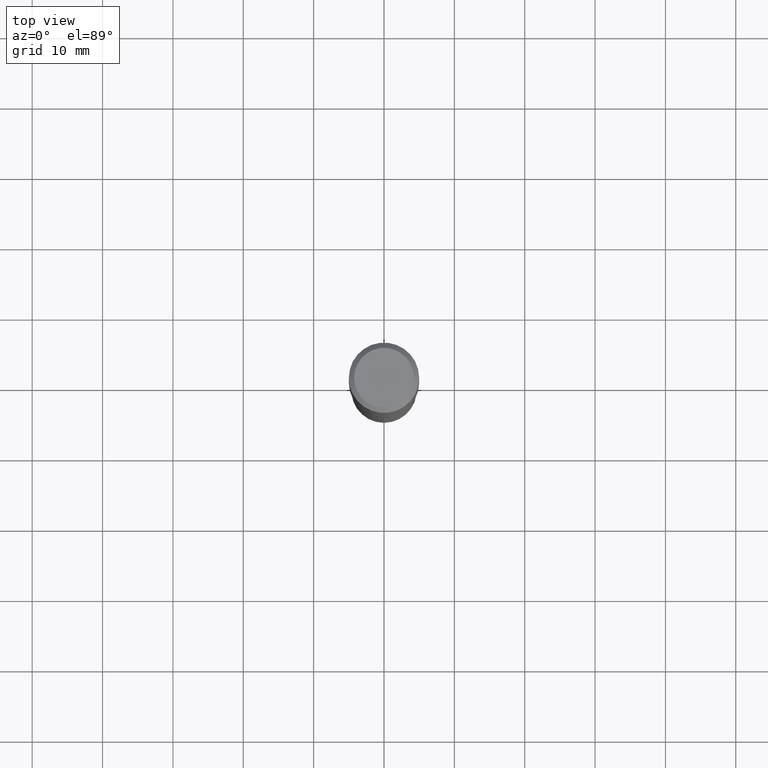
[diagram: clean part render]
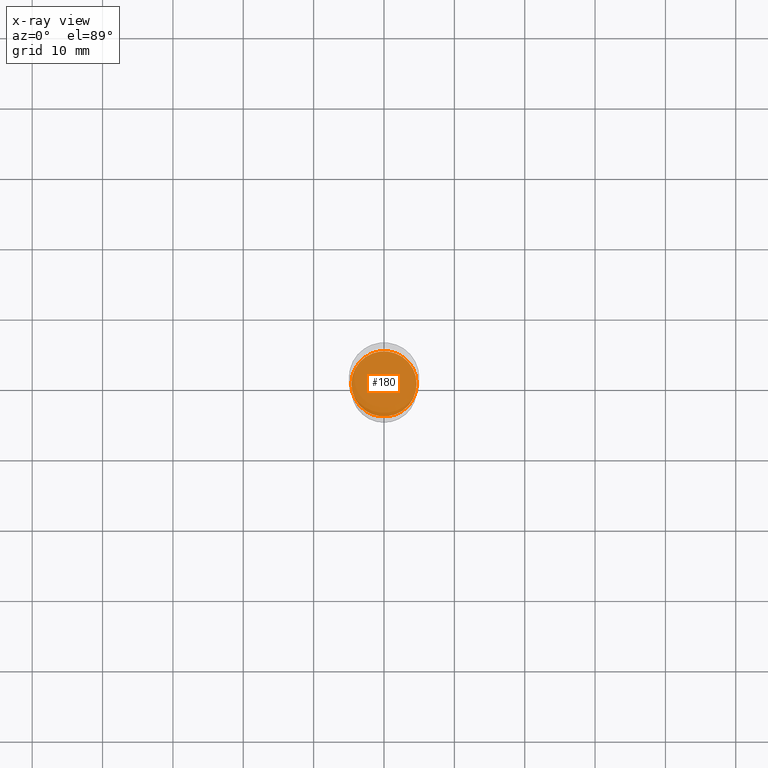
[diagram: x-ray — body ghosted, one internal face saturated and labeled with its STEP entity id]
A machine part, top view, then the same camera in x-ray: the body is ghosted and one INTERNAL B-rep face — a face not visible from any outside direction — is saturated and labeled: STEP entity #180.
In plain terms, the highlighted planar face has unit normal (-0, 0, 1).
Its self-contained STEP definition (entity closure, byte-faithful):
#5 = CIRCLE ( 'NONE', #332, 0.1825499999999999623 ) ;
#7 = FACE_OUTER_BOUND ( 'NONE', #96, .T. ) ;
#49 = ORIENTED_EDGE ( 'NONE', *, *, #347, .F. ) ;
#96 = EDGE_LOOP ( 'NONE', ( #364, #49 ) ) ;
#98 = DIRECTION ( 'NONE',  ( -2.445468806185136597E-29, 3.491481338843145583E-15, 1.000000000000000000 ) ) ;
#136 = AXIS2_PLACEMENT_3D ( 'NONE', #345, #98, #396 ) ;
#180 = ADVANCED_FACE ( 'NONE', ( #7 ), #302, .F. ) ;
#190 = DIRECTION ( 'NONE',  ( 1.000000000000000000, -6.982962677686264344E-15, 0.000000000000000000 ) ) ;
#192 = DIRECTION ( 'NONE',  ( -2.438088387897960049E-29, 3.491481338843145188E-15, 1.000000000000000000 ) ) ;
#195 = CARTESIAN_POINT ( 'NONE',  ( 4.938868800971501707E-29, -7.051395711927616472E-15, -2.019600000000000062 ) ) ;
#230 = EDGE_CURVE ( 'NONE', #314, #437, #5, .T. ) ;
#268 = CARTESIAN_POINT ( 'NONE',  ( -0.1825499999999999623, -5.751650720623443241E-15, -2.019600000000000062 ) ) ;
#302 = PLANE ( 'NONE',  #374 ) ;
#314 = VERTEX_POINT ( 'NONE', #471 ) ;
#326 = CIRCLE ( 'NONE', #136, 0.1825499999999999623 ) ;
#332 = AXIS2_PLACEMENT_3D ( 'NONE', #195, #455, #190 ) ;
#345 = CARTESIAN_POINT ( 'NONE',  ( 4.938868800971501707E-29, -7.051395711927616472E-15, -2.019600000000000062 ) ) ;
#347 = EDGE_CURVE ( 'NONE', #437, #314, #326, .T. ) ;
#364 = ORIENTED_EDGE ( 'NONE', *, *, #230, .F. ) ;
#374 = AXIS2_PLACEMENT_3D ( 'NONE', #450, #192, #420 ) ;
#396 = DIRECTION ( 'NONE',  ( 1.000000000000000000, -6.982962677686264344E-15, 0.000000000000000000 ) ) ;
#420 = DIRECTION ( 'NONE',  ( 1.000000000000000000, -6.982962677686265922E-15, 4.876176775795935793E-29 ) ) ;
#437 = VERTEX_POINT ( 'NONE', #268 ) ;
#450 = CARTESIAN_POINT ( 'NONE',  ( 4.938868800971501707E-29, -7.051395711927616472E-15, -2.019600000000000062 ) ) ;
#455 = DIRECTION ( 'NONE',  ( -2.445468806185136597E-29, 3.491481338843145583E-15, 1.000000000000000000 ) ) ;
#471 = CARTESIAN_POINT ( 'NONE',  ( 0.1825499999999999623, -8.326135548739243343E-15, -2.019600000000000062 ) ) ;